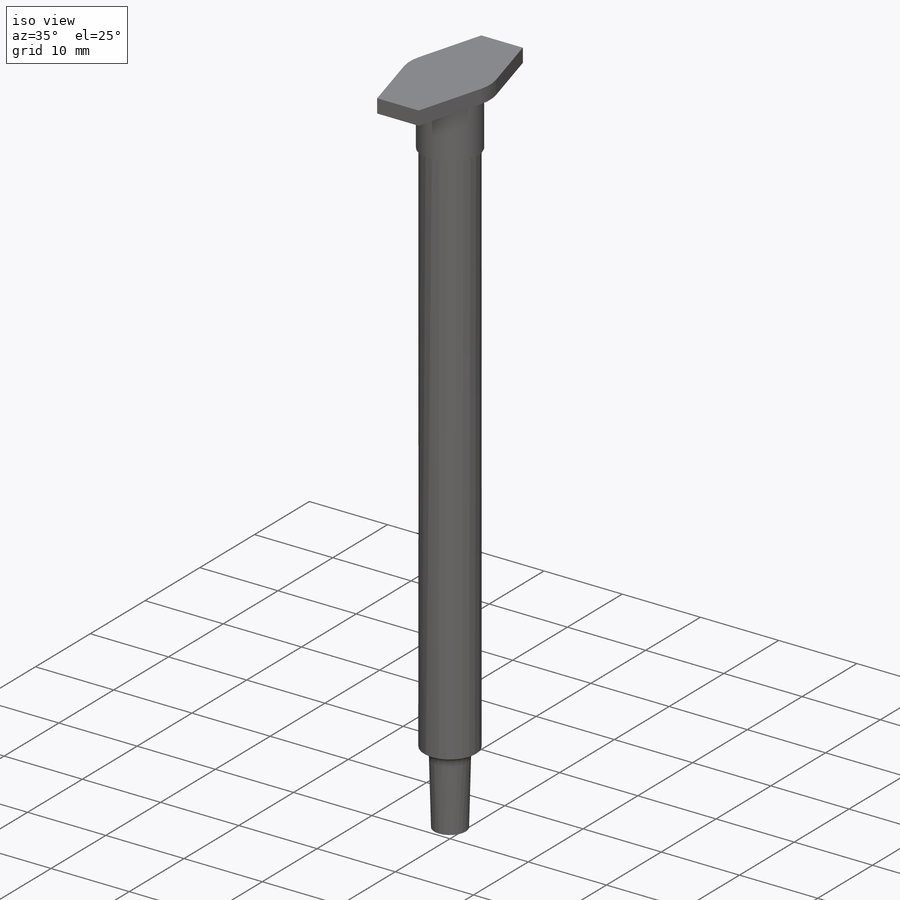
[diagram: iso view]
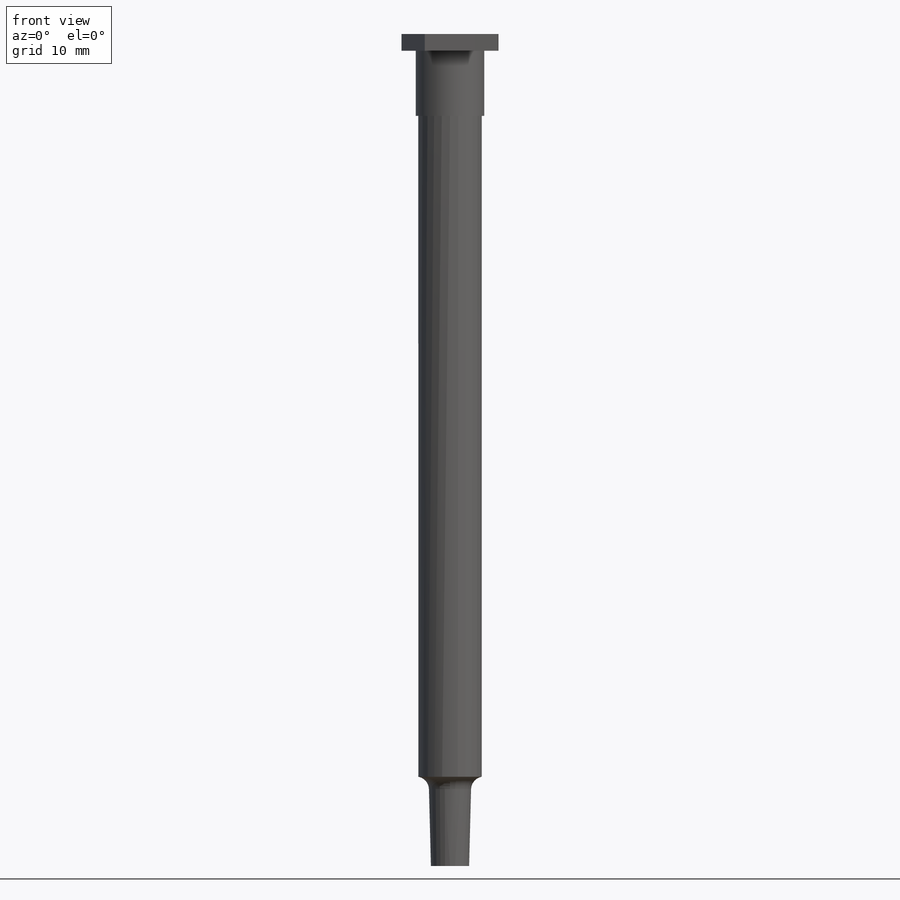
[diagram: front view]
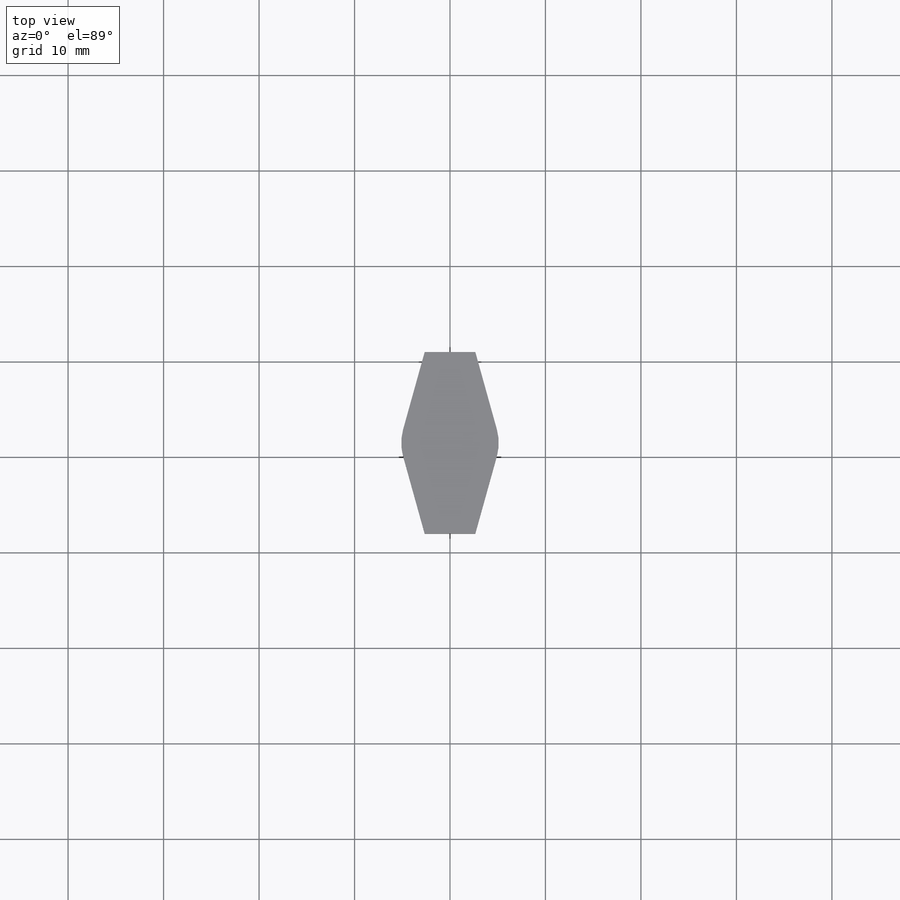
[diagram: top view]
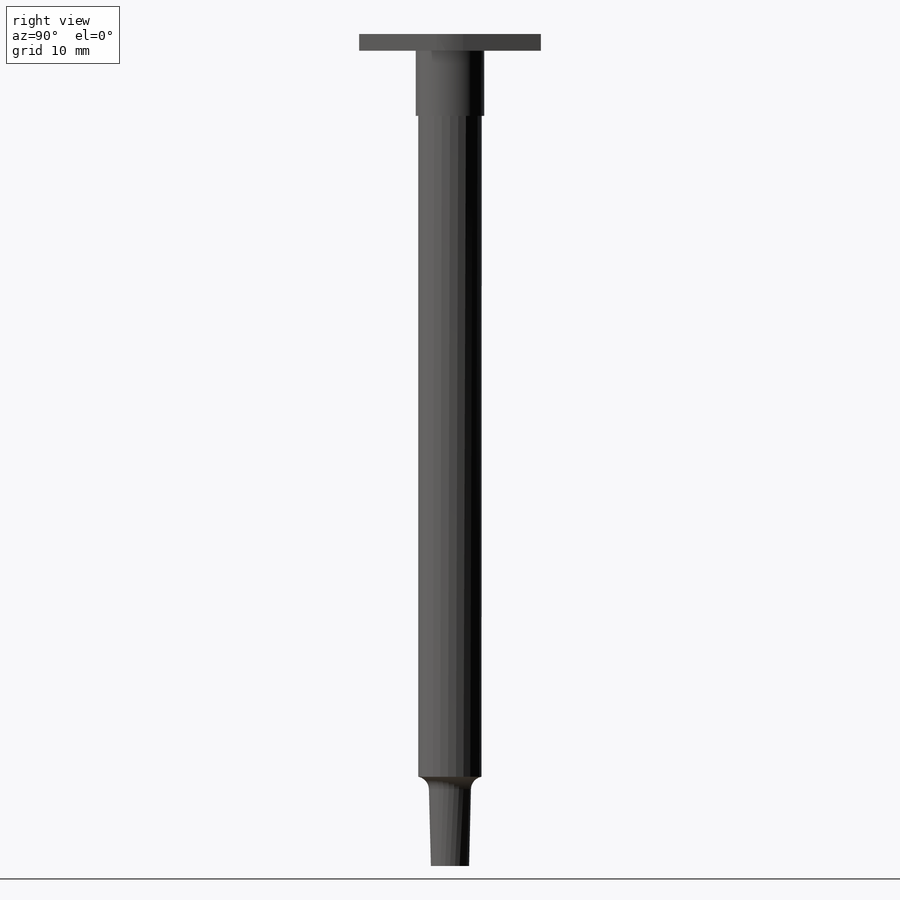
[diagram: right view]
SOLIDWORKS PART (.sldprt)
format: sldprt  version: not decoded by parser v0  size: 158,208 bytes
history: native  units: mm
features: sketch x4, extrude x3, material x1, revolve x1 (+12 scaffold rows collapsed)
feature tree (21):
  scaffold x12  (default folders/planes/origin — collapsed)
  material  "PET"
  sketch  "Sketch1"  dims[D1=6.65mm]
  extrude  "Boss-Extrude1"  Depth=69.2mm
  sketch  "Sketch2"  dims[D1=7.18mm]
  extrude  "Boss-Extrude2"  Depth=6.82mm
  sketch  "Sketch3"  dims[D1=10.21mm D2=5.3mm D3=19.02mm]
  extrude  "Boss-Extrude3"  Depth=1.76mm
  sketch  "Sketch4"  dims[D1=9.35mm D2=2.0mm D3=2.21mm D4=1.3mm]
  revolve  "Revolve1"  Angle=360deg
decode coverage: 8 of 8 modeling features carry decoded parameters
note: suppression state not decoded; provenance and decode notes live in map.json
